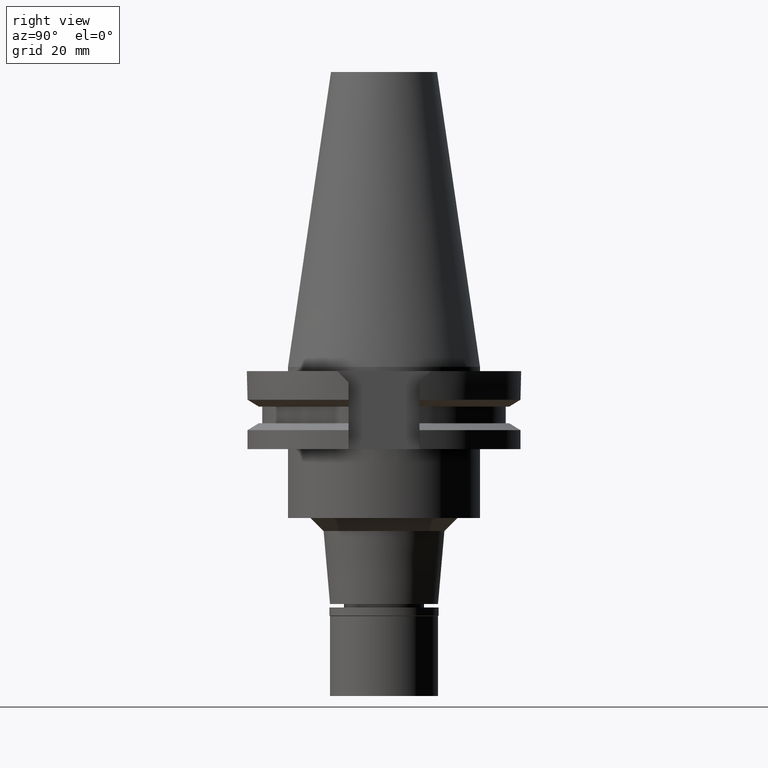
[diagram: clean part render]
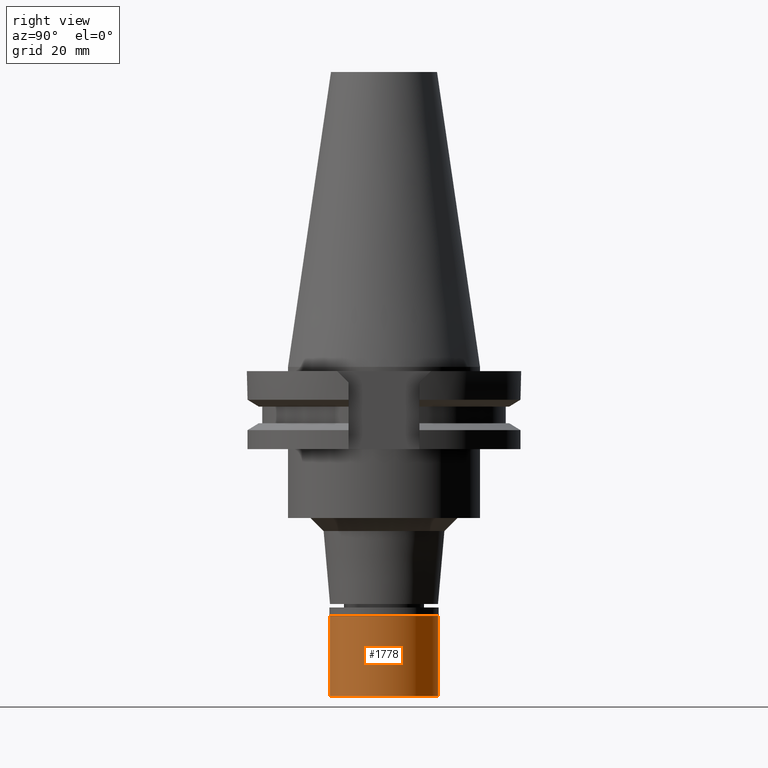
[diagram: same view with one face highlighted and labeled with its STEP entity id]
A machine part, right view. The second image highlights one B-rep face of the part: STEP entity #1778.
In plain terms, the highlighted cylindrical surface (partial cylindrical patch) has radius 12.5 mm, axis along (0, 0, -1).
Its self-contained STEP definition (entity closure, byte-faithful):
#142 = AXIS2_PLACEMENT_3D ( 'NONE', #3216, #1522, #1224 ) ;
#238 = ORIENTED_EDGE ( 'NONE', *, *, #685, .F. ) ;
#448 = CARTESIAN_POINT ( 'NONE',  ( 0.0000000000000000000, 0.0000000000000000000, -20.50000000000000000 ) ) ;
#464 = LINE ( 'NONE', #3036, #1900 ) ;
#571 = ORIENTED_EDGE ( 'NONE', *, *, #1925, .T. ) ;
#583 = CIRCLE ( 'NONE', #2425, 12.50000000000000000 ) ;
#602 = EDGE_CURVE ( 'NONE', #1916, #1698, #1352, .T. ) ;
#673 = FACE_OUTER_BOUND ( 'NONE', #1858, .T. ) ;
#685 = EDGE_CURVE ( 'NONE', #3150, #1698, #464, .T. ) ;
#713 = DIRECTION ( 'NONE',  ( 0.0000000000000000000, 0.0000000000000000000, 1.000000000000000000 ) ) ;
#755 = AXIS2_PLACEMENT_3D ( 'NONE', #448, #713, #2825 ) ;
#1206 = CARTESIAN_POINT ( 'NONE',  ( 0.0000000000000000000, 12.50000000000000000, -20.50000000000000000 ) ) ;
#1215 = CARTESIAN_POINT ( 'NONE',  ( 0.0000000000000000000, -12.50000000000000000, -20.50000000000000000 ) ) ;
#1224 = DIRECTION ( 'NONE',  ( 0.0000000000000000000, -1.000000000000000000, 0.0000000000000000000 ) ) ;
#1234 = LINE ( 'NONE', #1989, #1330 ) ;
#1330 = VECTOR ( 'NONE', #2476, 1000.000000000000000 ) ;
#1352 = CIRCLE ( 'NONE', #755, 12.50000000000000000 ) ;
#1482 = DIRECTION ( 'NONE',  ( 0.0000000000000000000, 1.000000000000000000, 0.0000000000000000000 ) ) ;
#1522 = DIRECTION ( 'NONE',  ( 0.0000000000000000000, 0.0000000000000000000, -1.000000000000000000 ) ) ;
#1698 = VERTEX_POINT ( 'NONE', #1206 ) ;
#1778 = ADVANCED_FACE ( 'NONE', ( #673 ), #2972, .T. ) ;
#1858 = EDGE_LOOP ( 'NONE', ( #3154, #571, #3196, #238 ) ) ;
#1864 = EDGE_CURVE ( 'NONE', #3150, #2555, #583, .T. ) ;
#1900 = VECTOR ( 'NONE', #2532, 1000.000000000000000 ) ;
#1916 = VERTEX_POINT ( 'NONE', #1215 ) ;
#1925 = EDGE_CURVE ( 'NONE', #2555, #1916, #1234, .T. ) ;
#1966 = DIRECTION ( 'NONE',  ( 0.0000000000000000000, 0.0000000000000000000, -1.000000000000000000 ) ) ;
#1989 = CARTESIAN_POINT ( 'NONE',  ( 0.0000000000000000000, -12.50000000000000000, -2.000000000000000000 ) ) ;
#2296 = CARTESIAN_POINT ( 'NONE',  ( 0.0000000000000000000, -12.50000000000000000, -2.000000000000000000 ) ) ;
#2327 = CARTESIAN_POINT ( 'NONE',  ( 0.0000000000000000000, 12.50000000000000000, -2.000000000000000000 ) ) ;
#2425 = AXIS2_PLACEMENT_3D ( 'NONE', #2491, #1966, #1482 ) ;
#2476 = DIRECTION ( 'NONE',  ( 0.0000000000000000000, 0.0000000000000000000, -1.000000000000000000 ) ) ;
#2491 = CARTESIAN_POINT ( 'NONE',  ( 0.0000000000000000000, 0.0000000000000000000, -2.000000000000000000 ) ) ;
#2532 = DIRECTION ( 'NONE',  ( 0.0000000000000000000, 0.0000000000000000000, -1.000000000000000000 ) ) ;
#2555 = VERTEX_POINT ( 'NONE', #2296 ) ;
#2825 = DIRECTION ( 'NONE',  ( 0.0000000000000000000, -1.000000000000000000, 0.0000000000000000000 ) ) ;
#2972 = CYLINDRICAL_SURFACE ( 'NONE', #142, 12.50000000000000000 ) ;
#3036 = CARTESIAN_POINT ( 'NONE',  ( 0.0000000000000000000, 12.50000000000000000, -2.000000000000000000 ) ) ;
#3150 = VERTEX_POINT ( 'NONE', #2327 ) ;
#3154 = ORIENTED_EDGE ( 'NONE', *, *, #1864, .T. ) ;
#3196 = ORIENTED_EDGE ( 'NONE', *, *, #602, .T. ) ;
#3216 = CARTESIAN_POINT ( 'NONE',  ( 0.0000000000000000000, 0.0000000000000000000, 0.0000000000000000000 ) ) ;